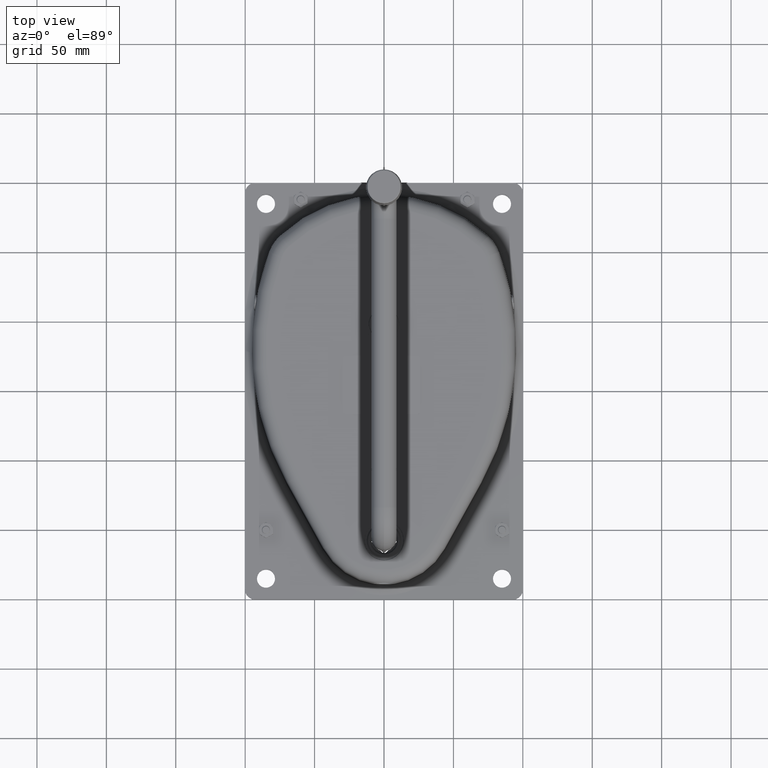
[diagram: clean part render]
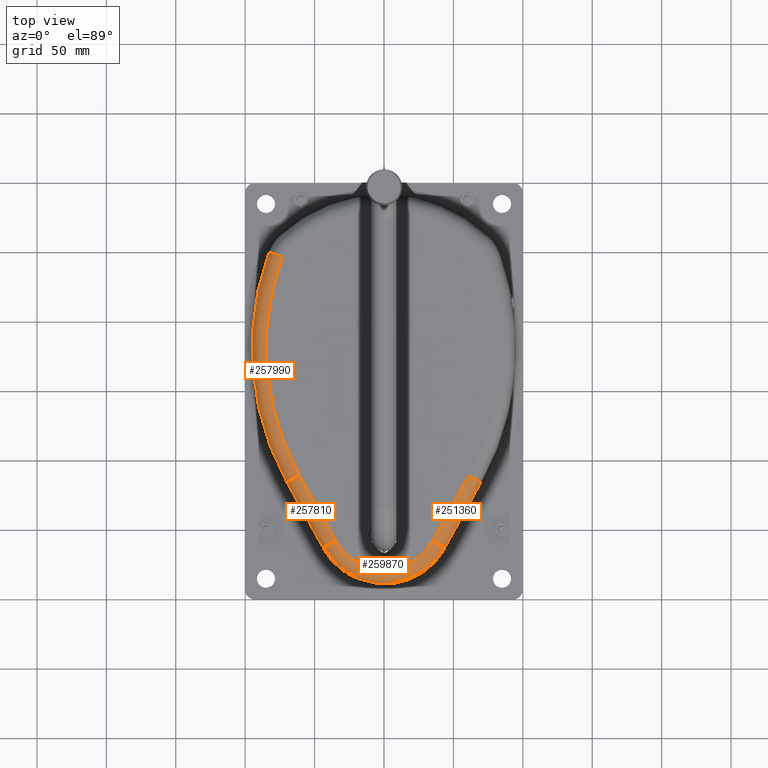
[diagram: same view with one multi-face feature highlighted, each face labeled with its STEP entity id]
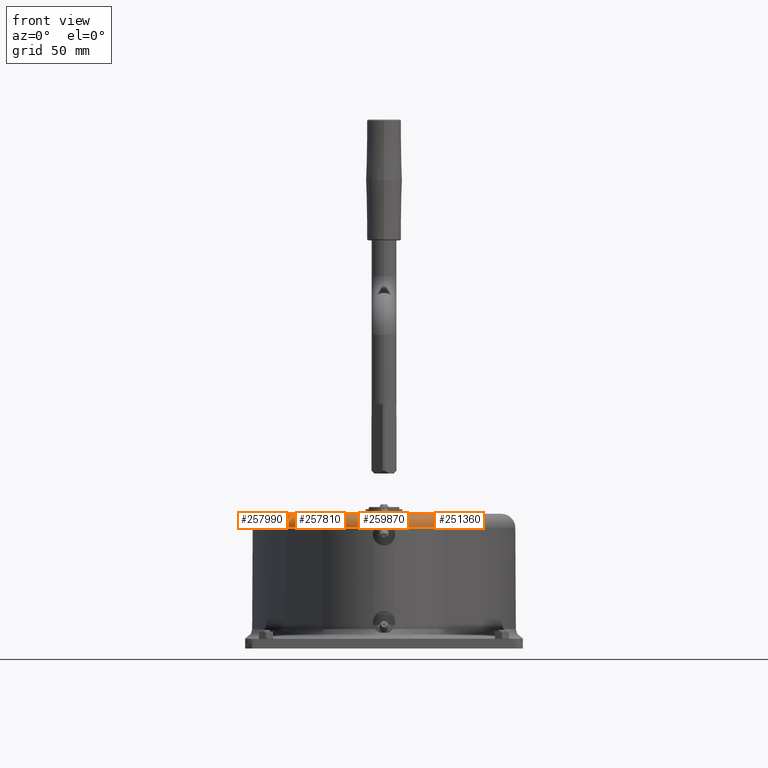
[diagram: same view with one multi-face feature highlighted, each face labeled with its STEP entity id]
A machine part, top view. The highlighted faces form ONE feature: a constant-radius fillet chain: 4 tangent blend faces with common blend radius 10 mm. The faces share edges in the B-rep.
A second angle (front view) of the same feature is appended — it is thin or edge-on in the first view.
Their STEP definitions:
[1] entity #259870 (Torus):
#53680=CARTESIAN_POINT('',(2.39097968190802,136.979134236425,-10.));
#53690=DIRECTION('',(0.,-0.,-1.));
#53700=DIRECTION('',(0.999847695156391,-0.0174524064372835,0.));
#53710=AXIS2_PLACEMENT_3D('',#53680,#53690,#53700);
#53720=CIRCLE('',#53710,40.);
#53730=CARTESIAN_POINT('',(-32.2545573199754,156.971301849046,-10.));
#53740=VERTEX_POINT('',#53730);
#53750=CARTESIAN_POINT('',(37.7131281464134,155.750011356353,-10.));
#53760=VERTEX_POINT('',#53750);
#53770=EDGE_CURVE('',#53740,#53760,#53720,.T.);
#251220=CARTESIAN_POINT('',(46.5436652625398,160.442730636335,
-2.8421709430404E-14));
#251230=VERTEX_POINT('',#251220);
#251260=CARTESIAN_POINT('',(37.7131281464135,155.750011356353,
-2.8421709430404E-14));
#251270=DIRECTION('',(0.4692719279982,-0.883053711612636,0.));
#251280=DIRECTION('',(0.883053711612636,0.4692719279982,0.));
#251290=AXIS2_PLACEMENT_3D('',#251260,#251270,#251280);
#251300=CIRCLE('',#251290,10.);
#251310=EDGE_CURVE('',#53760,#251230,#251300,.T.);
#253890=CARTESIAN_POINT('',(-40.9159415704462,161.969343752201,
-2.8421709430404E-14));
#253900=VERTEX_POINT('',#253890);
#253930=CARTESIAN_POINT('',(2.39097968190802,136.979134236425,
-2.8421709430404E-14));
#253940=DIRECTION('',(0.,-0.,-1.));
#253950=DIRECTION('',(0.999847695156391,-0.0174524064372835,0.));
#253960=AXIS2_PLACEMENT_3D('',#253930,#253940,#253950);
#253970=CIRCLE('',#253960,50.);
#253980=CARTESIAN_POINT('',(-2.9872800438964,186.689035889132,0.));
#253990=VERTEX_POINT('',#253980);
#254000=EDGE_CURVE('',#253900,#253990,#253970,.T.);
#257190=CARTESIAN_POINT('',(9.50081366601347,186.471055402596,
-7.105427357601E-14));
#257200=VERTEX_POINT('',#257190);
#257230=EDGE_CURVE('',#257200,#251230,#253970,.T.);
#257630=CARTESIAN_POINT('',(-32.2545573199754,156.971301849046,
-2.8421709430404E-14));
#257640=DIRECTION('',(0.499804190315523,0.866138425047085,0.));
#257650=DIRECTION('',(-0.866138425047085,0.499804190315523,-0.));
#257660=AXIS2_PLACEMENT_3D('',#257630,#257640,#257650);
#257670=CIRCLE('',#257660,10.);
#257680=EDGE_CURVE('',#53740,#253900,#257670,.T.);
#258300=CARTESIAN_POINT('',(2.39097968190802,136.979134236425,
-2.8421709430404E-14));
#258310=DIRECTION('',(0.,-0.,-1.));
#258320=DIRECTION('',(-1.,0.,0.));
#258330=AXIS2_PLACEMENT_3D('',#258300,#258310,#258320);
#258340=TOROIDAL_SURFACE('',#258330,40.,10.);
#258350=ORIENTED_EDGE('',*,*,#251310,.F.);
#258360=ORIENTED_EDGE('',*,*,#257230,.T.);
#258370=CARTESIAN_POINT('',(9.50081366601326,186.471055402618,
2.68595916200358E-12));
#258380=CARTESIAN_POINT('',(9.31527125875053,186.497709767241,
-0.232288110040329));
#258390=CARTESIAN_POINT('',(9.11639467594897,186.517036368844,
-0.454500245974532));
#258400=CARTESIAN_POINT('',(8.90504556973544,186.530633682329,
-0.665414668867476));
#258410=CARTESIAN_POINT('',(8.85223369043336,186.534031376748,
-0.718117929574125));
#258420=CARTESIAN_POINT('',(8.7986704925271,186.537069587956,
-0.770088186339204));
#258430=CARTESIAN_POINT('',(8.74439269806478,186.539773747498,
-0.82129034419344));
#258440=CARTESIAN_POINT('',(8.6901148918004,186.542477907627,
-0.872492513180976));
#258450=CARTESIAN_POINT('',(8.6351225965098,186.544848025036,
-0.922926486848421));
#258460=CARTESIAN_POINT('',(8.57945440851897,186.546910346571,
-0.972559791437436));
#258470=CARTESIAN_POINT('',(8.46815189299168,186.551033735222,
-1.07179621090917));
#258480=CARTESIAN_POINT('',(8.35405707465413,186.553931460233,
-1.16791849399033));
#258490=CARTESIAN_POINT('',(8.2371545426476,186.555814242713,
-1.26091695950417));
#258500=CARTESIAN_POINT('',(8.12027528994461,186.557696650265,
-1.35389690583394));
#258510=CARTESIAN_POINT('',(8.00068774760171,186.558561391436,
-1.4436671925601));
#258520=CARTESIAN_POINT('',(7.87868186168979,186.558617040583,
-1.53000392371791));
#258530=CARTESIAN_POINT('',(7.75667595460816,186.558672689739,
-1.61634066985633));
#258540=CARTESIAN_POINT('',(7.63225462580299,186.557919651364,
-1.69924181682729));
#258550=CARTESIAN_POINT('',(7.50573147707539,186.556568627291,
-1.7785187675577));
#258560=CARTESIAN_POINT('',(7.44247001456257,186.555893116448,
-1.81815717283925));
#258570=CARTESIAN_POINT('',(7.37868369421682,186.555068106401,
-1.85688993599935));
#258580=CARTESIAN_POINT('',(7.31441330033621,186.554119633326,
-1.89469711068627));
#258590=CARTESIAN_POINT('',(7.25014821918994,186.553171238654,
-1.93250116014768));
#258600=CARTESIAN_POINT('',(7.18530336906222,186.552097967863,
-1.96943616363618));
#258610=CARTESIAN_POINT('',(7.11991200869281,186.550924424903,
-2.00547845354763));
#258620=CARTESIAN_POINT('',(6.98912939788218,186.548577340957,
-2.0775629727805));
#258630=CARTESIAN_POINT('',(6.85616219208218,186.545829655434,
-2.1460731006512));
#258640=CARTESIAN_POINT('',(6.72130757807275,186.542875124311,
-2.21083341248851));
#258650=CARTESIAN_POINT('',(6.58645313296232,186.539920596889,
-2.27559364321661));
#258660=CARTESIAN_POINT('',(6.4497140368013,186.536759692943,
-2.33660264329383));
#258670=CARTESIAN_POINT('',(6.31140901736116,186.533576623467,
-2.39371682775522));
#258680=CARTESIAN_POINT('',(6.17310390484854,186.530393551848,
-2.45083105065164));
#258690=CARTESIAN_POINT('',(6.03323580875509,186.527188777341,
-2.50404927598617));
#258700=CARTESIAN_POINT('',(5.89213589528688,186.524130688413,
-2.55326429917497));
#258710=CARTESIAN_POINT('',(5.75101870514418,186.521072225045,
-2.60248534839111));
#258720=CARTESIAN_POINT('',(5.60874697836468,186.518162268904,
-2.64767970373908));
#258730=CARTESIAN_POINT('',(5.46544132722984,186.515543701851,
-2.68884058531693));
#258740=CARTESIAN_POINT('',(5.39375860993525,186.514233872125,
-2.70942961173965));
#258750=CARTESIAN_POINT('',(5.32176010488007,186.512995593662,
-2.72902532178064));
#258760=CARTESIAN_POINT('',(5.24948750712257,186.511845554314,
-2.7476144284707));
#258770=CARTESIAN_POINT('',(5.17721491812399,186.510695515106,
-2.7662035329079));
#258780=CARTESIAN_POINT('',(5.10466833863981,186.509633727489,
-2.78378600540758));
#258790=CARTESIAN_POINT('',(5.03189034139669,186.50867531306,
-2.80035083918201));
#258800=CARTESIAN_POINT('',(4.95911234305919,186.507716898616,
-2.81691567320553));
#258810=CARTESIAN_POINT('',(4.88610303290007,186.506861868309,
-2.83246284418954));
#258820=CARTESIAN_POINT('',(4.81290552185006,186.506123619003,
-2.84698372840804));
#258830=CARTESIAN_POINT('',(4.73970799933494,186.505385369581,
-2.86150461490099));
#258840=CARTESIAN_POINT('',(4.66632238478075,186.504763910227,
-2.87499919501703));
#258850=CARTESIAN_POINT('',(4.59279196472706,186.504270777409,
-2.88746128932925));
#258860=CARTESIAN_POINT('',(4.51927067824927,186.503777705845,
-2.89992183566331));
#258870=CARTESIAN_POINT('',(4.44556865001307,186.5034126524,
-2.91135653328914));
#258880=CARTESIAN_POINT('',(4.37169909917992,186.503185606531,
-2.92176193461657));
#258890=CARTESIAN_POINT('',(4.29783204530242,186.502958568338,
-2.93216698421822));
#258900=CARTESIAN_POINT('',(4.22380827242451,186.502869605572,
-2.94154099564171));
#258910=CARTESIAN_POINT('',(4.1496718841049,186.502926906827,
-2.94987788524321));
#258920=CARTESIAN_POINT('',(4.00137840796976,186.503041525336,
-2.96655399217511));
#258930=CARTESIAN_POINT('',(3.85272843597479,186.503742694648,
-2.97907267078765));
#258940=CARTESIAN_POINT('',(3.7037938183842,186.505073150665,
-2.98743114912054));
#258950=CARTESIAN_POINT('',(3.62932409368158,186.505738400255,
-2.99161052387204));
#258960=CARTESIAN_POINT('',(3.55478774621978,186.506560600406,
-2.99474882753865));
#258970=CARTESIAN_POINT('',(3.48022946519318,186.507542045456,
-2.99684391584935));
#258980=CARTESIAN_POINT('',(3.4056711786367,186.508523490579,
-2.99893900431545));
#258990=CARTESIAN_POINT('',(3.33109108517746,186.509664180051,
-2.99999087475374));
#259000=CARTESIAN_POINT('',(3.25653378490807,186.51096419526,
-2.99999994087249));
#259010=CARTESIAN_POINT('',(3.18197607122861,186.512264217678,
-3.00000900704151));
#259020=CARTESIAN_POINT('',(3.10739987643882,186.513724287311,
-2.99897526229548));
#259030=CARTESIAN_POINT('',(3.03284977888694,186.515342796526,
-2.99689819777198));
#259040=CARTESIAN_POINT('',(2.95829968623883,186.516961305635,
-2.9948211333851));
#259050=CARTESIAN_POINT('',(2.88377581144797,186.518738250643,
-2.99170075165683));
#259060=CARTESIAN_POINT('',(2.80932274981643,186.520669808409,
-2.98753910200382));
#259070=CARTESIAN_POINT('',(2.7348682924653,186.522601402386,
-2.98337737433527));
#259080=CARTESIAN_POINT('',(2.66049074384011,186.524687430063,
-2.97817484083402));
#259090=CARTESIAN_POINT('',(2.58621736615243,186.526922401042,
-2.9719346909748));
#259100=CARTESIAN_POINT('',(2.51193614943767,186.529157607906,
-2.96569388251212));
#259110=CARTESIAN_POINT('',(2.43772249601032,186.531542913879,
-2.95841200500862));
#259120=CARTESIAN_POINT('',(2.36362040010367,186.53407076675,
-2.95009212966654));
#259130=CARTESIAN_POINT('',(2.28951831150336,186.536598619373,
-2.9417722551448));
#259140=CARTESIAN_POINT('',(2.21552789676956,186.539269009977,
-2.93241439465117));
#259150=CARTESIAN_POINT('',(2.14169299952811,186.542072292217,
-2.92202413704449));
#259160=CARTESIAN_POINT('',(2.06785809859299,186.544875574598,
-2.91163387891801));
#259170=CARTESIAN_POINT('',(1.99417882909787,186.547811737351,
-2.90021124085792));
#259180=CARTESIAN_POINT('',(1.92069850167625,186.550869143052,
-2.88776428206445));
#259190=CARTESIAN_POINT('',(1.77377283013471,186.556982498852,
-2.86287629035905));
#259200=CARTESIAN_POINT('',(1.62752761387812,186.563586817243,
-2.8338747470478));
#259210=CARTESIAN_POINT('',(1.48211352629539,186.570579296601,
-2.80077888727825));
#259220=CARTESIAN_POINT('',(1.40941427459137,186.574075161584,
-2.78423273085184));
#259230=CARTESIAN_POINT('',(1.33693964913272,186.577666859314,
-2.76666674773954));
#259240=CARTESIAN_POINT('',(1.26473179215501,186.5813378784,
-2.74809107502055));
#259250=CARTESIAN_POINT('',(1.19252393324754,186.585008897585,
-2.72951540180512));
#259260=CARTESIAN_POINT('',(1.12058294511888,186.588759222447,
-2.70993006623971));
#259270=CARTESIAN_POINT('',(1.04895022818693,186.592570770057,
-2.68934753405741));
#259280=CARTESIAN_POINT('',(0.977317499817563,186.596382318276,
-2.66876499858875));
#259290=CARTESIAN_POINT('',(0.905993140960411,186.600255072455,
-2.64718529775198));
#259300=CARTESIAN_POINT('',(0.835017491485974,186.604169560582,
-2.62462310642372));
#259310=CARTESIAN_POINT('',(0.764058412318695,186.608083134814,
-2.6020661825702));
#259320=CARTESIAN_POINT('',(0.693366900808715,186.612042885185,
-2.57850183196832));
#259330=CARTESIAN_POINT('',(0.622951590177022,186.61603021265,
-2.55392760356611));
#259340=CARTESIAN_POINT('',(0.482126155369443,186.624004573893,
-2.50478095678212));
#259350=CARTESIAN_POINT('',(0.342452286275175,186.632087878338,
-2.45160758320908));
#259360=CARTESIAN_POINT('',(0.204258151794336,186.640100560999,
-2.39449999352602));
#259370=CARTESIAN_POINT('',(0.0660643095163911,186.648113226717,
-2.3373925245934));
#259380=CARTESIAN_POINT('',(-0.0706468092268165,186.656054713987,
-2.27635195368818));
#259390=CARTESIAN_POINT('',(-0.205554344089464,186.663728507466,
-2.21150952948499));
#259400=CARTESIAN_POINT('',(-0.340461862520346,186.67140230001,
-2.14666711317962));
#259410=CARTESIAN_POINT('',(-0.473562945837049,186.678807823824,
-2.07802421961867));
#259420=CARTESIAN_POINT('',(-0.60455381870717,186.68573819406,
-2.00574749634002));
#259430=CARTESIAN_POINT('',(-0.73554492742913,186.692668576774,
-1.93347064292559));
#259440=CARTESIAN_POINT('',(-0.86442314350068,186.699123261164,
-1.85756157296712));
#259450=CARTESIAN_POINT('',(-0.990910184304839,186.704891611508,
-1.77821684421418));
#259460=CARTESIAN_POINT('',(-1.05415366325124,186.707775784789,
-1.73854450584266));
#259470=CARTESIAN_POINT('',(-1.11679955295195,186.710488345223,
-1.69801382511894));
#259480=CARTESIAN_POINT('',(-1.17881587920226,186.713003093358,
-1.65665168143002));
#259490=CARTESIAN_POINT('',(-1.24081710469915,186.715517229161,
-1.615299609275));
#259500=CARTESIAN_POINT('',(-1.30226903483811,186.717836959235,
-1.57306343818082));
#259510=CARTESIAN_POINT('',(-1.36315734808783,186.719935250347,
-1.52994953894632));
#259520=CARTESIAN_POINT('',(-1.48493020241507,186.724131702577,
-1.44372441148335));
#259530=CARTESIAN_POINT('',(-1.604410685225,186.727440668605,
-1.35401078062737));
#259540=CARTESIAN_POINT('',(-1.72129943534889,186.729639523221,
-1.26102295054939));
#259550=CARTESIAN_POINT('',(-1.77974361247661,186.730738946806,
-1.21452919297186));
#259560=CARTESIAN_POINT('',(-1.83753987210677,186.731560897666,
-1.16721775097035));
#259570=CARTESIAN_POINT('',(-1.89465306232068,186.73207818375,
-1.11911892272792));
#259580=CARTESIAN_POINT('',(-1.95176626224366,186.732595469922,
-1.07102008630884));
#259590=CARTESIAN_POINT('',(-2.00819630016601,186.732808079062,
-1.02213394509384));
#259600=CARTESIAN_POINT('',(-2.06391006561612,186.732689489855,
-0.972492689421361));
#259610=CARTESIAN_POINT('',(-2.11963055788907,186.732570886329,
-0.922845440114631));
#259620=CARTESIAN_POINT('',(-2.17460607258475,186.732121401593,
-0.872469718792934));
#259630=CARTESIAN_POINT('',(-2.22888753002727,186.731314168777,
-0.821322476843958));
#259640=CARTESIAN_POINT('',(-2.28317423865299,186.73050685787,
-0.770170286915498));
#259650=CARTESIAN_POINT('',(-2.33677523387174,186.729341236896,
-0.718236941194088));
#259660=CARTESIAN_POINT('',(-2.38965306534411,186.727790051581,
-0.66555669586335));
#259670=CARTESIAN_POINT('',(-2.44253088288537,186.726238866675,
-0.612876464411667));
#259680=CARTESIAN_POINT('',(-2.49468542597574,186.724302105838,
-0.559449437972141));
#259690=CARTESIAN_POINT('',(-2.54608118474061,186.721953548652,
-0.505312586065819));
#259700=CARTESIAN_POINT('',(-2.59747693999993,186.719604991625,
-0.451175737852001));
#259710=CARTESIAN_POINT('',(-2.64811380161896,186.716844629763,
-0.396329178064453));
#259720=CARTESIAN_POINT('',(-2.69795859142559,186.713647477351,
-0.3408122491666));
#259730=CARTESIAN_POINT('',(-2.74780338792646,186.71045032451,
-0.285295312812729));
#259740=CARTESIAN_POINT('',(-2.79685600591469,186.706816376347,
-0.229108129864677));
#259750=CARTESIAN_POINT('',(-2.84508595411315,186.702722051011,
-0.172292012430058));
#259760=CARTESIAN_POINT('',(-2.89331591907519,186.698627724251,
-0.115475875247528));
#259770=CARTESIAN_POINT('',(-2.94072311155416,186.694073019882,
-0.0580309337724281));
#259780=CARTESIAN_POINT('',(-2.98728004389638,186.689035889132,
-2.92022670197013E-14));
#259790=B_SPLINE_CURVE_WITH_KNOTS('',3,(#258370,#258380,#258390,#258400,
#258410,#258420,#258430,#258440,#258450,#258460,#258470,#258480,#258490,
#258500,#258510,#258520,#258530,#258540,#258550,#258560,#258570,#258580,
#258590,#258600,#258610,#258620,#258630,#258640,#258650,#258660,#258670,
#258680,#258690,#258700,#258710,#258720,#258730,#258740,#258750,#258760,
#258770,#258780,#258790,#258800,#258810,#258820,#258830,#258840,#258850,
#258860,#258870,#258880,#258890,#258900,#258910,#258920,#258930,#258940,
#258950,#258960,#258970,#258980,#258990,#259000,#259010,#259020,#259030,
#259040,#259050,#259060,#259070,#259080,#259090,#259100,#259110,#259120,
#259130,#259140,#259150,#259160,#259170,#259180,#259190,#259200,#259210,
#259220,#259230,#259240,#259250,#259260,#259270,#259280,#259290,#259300,
#259310,#259320,#259330,#259340,#259350,#259360,#259370,#259380,#259390,
#259400,#259410,#259420,#259430,#259440,#259450,#259460,#259470,#259480,
#259490,#259500,#259510,#259520,#259530,#259540,#259550,#259560,#259570,
#259580,#259590,#259600,#259610,#259620,#259630,#259640,#259650,#259660,
#259670,#259680,#259690,#259700,#259710,#259720,#259730,#259740,#259750,
#259760,#259770,#259780),.UNSPECIFIED.,.F.,.F.,(4,3,3,3,3,3,3,3,3,3,3,3,
3,3,3,3,3,3,3,3,3,3,3,3,3,3,3,3,3,3,3,3,3,3,3,3,3,3,3,3,3,3,3,3,3,3,3,4)
,(0.,0.89567604570415,1.1197157176852,1.3436389611871,1.79136068724672,
2.23966152707411,2.68789136626241,2.91174260940627,3.13561037442671,
3.58413445685134,4.03313609635224,4.48189798432399,4.92975429814511,
5.15360105888409,5.37752738291209,5.60144431046224,5.82526376855807,
6.04901156884601,6.27281948014755,6.72034086983031,6.94412437018759,
7.16787594801154,7.39163176887157,7.61542551875891,7.83917077083229,
8.06295847284421,8.28680425320833,8.51061892082181,8.95823988913308,
9.18218154354323,9.406105522488,9.62992301240821,9.85378399966425,
10.3025081713004,10.7520002608768,11.201529354622,11.6503744495908,
11.874329348942,12.0981298136,12.5461662373609,12.7702146590457,
12.9941591031703,13.2179346198308,13.4418198753792,13.6658415516366,
13.8898948297087,14.113878580576,14.3376974297084),.UNSPECIFIED.);
#259800=EDGE_CURVE('',#257200,#253990,#259790,.T.);
#259810=ORIENTED_EDGE('',*,*,#259800,.F.);
#259820=ORIENTED_EDGE('',*,*,#254000,.T.);
#259830=ORIENTED_EDGE('',*,*,#257680,.T.);
#259840=ORIENTED_EDGE('',*,*,#53770,.F.);
#259850=EDGE_LOOP('',(#259840,#259830,#259820,#259810,#258360,#258350));
#259860=FACE_OUTER_BOUND('',#259850,.T.);
#259870=ADVANCED_FACE('',(#259860),#258340,.T.);
[2] entity #257810 (Cylinder):
#17770=CARTESIAN_POINT('',(-67.946986108562,115.125746204848,
-2.8421709430404E-14));
#17780=VERTEX_POINT('',#17770);
#53730=CARTESIAN_POINT('',(-32.2545573199754,156.971301849046,-10.));
#53740=VERTEX_POINT('',#53730);
#53790=CARTESIAN_POINT('',(-9.04759503807331,197.187934983483,-10.));
#53800=DIRECTION('',(-0.499804190315523,-0.866138425047085,0.));
#53810=VECTOR('',#53800,1.);
#53820=LINE('',#53790,#53810);
#53830=CARTESIAN_POINT('',(-59.2856018580911,110.127704301693,-10.));
#53840=VERTEX_POINT('',#53830);
#53850=EDGE_CURVE('',#53740,#53840,#53820,.T.);
#253890=CARTESIAN_POINT('',(-40.9159415704462,161.969343752201,
-2.8421709430404E-14));
#253900=VERTEX_POINT('',#253890);
#257420=CARTESIAN_POINT('',(-17.7089792885442,202.185976886639,
-2.8421709430404E-14));
#257430=DIRECTION('',(-0.499804190315523,-0.866138425047085,0.));
#257440=VECTOR('',#257430,1.);
#257450=LINE('',#257420,#257440);
#257460=EDGE_CURVE('',#253900,#17780,#257450,.T.);
#257580=CARTESIAN_POINT('',(-9.04759503807331,197.187934983483,
-2.8421709430404E-14));
#257590=DIRECTION('',(-0.499804190315523,-0.866138425047085,0.));
#257600=DIRECTION('',(0.866138425047085,-0.499804190315523,0.));
#257610=AXIS2_PLACEMENT_3D('',#257580,#257590,#257600);
#257620=CYLINDRICAL_SURFACE('',#257610,10.);
#257630=CARTESIAN_POINT('',(-32.2545573199754,156.971301849046,
-2.8421709430404E-14));
#257640=DIRECTION('',(0.499804190315523,0.866138425047085,0.));
#257650=DIRECTION('',(-0.866138425047085,0.499804190315523,-0.));
#257660=AXIS2_PLACEMENT_3D('',#257630,#257640,#257650);
#257670=CIRCLE('',#257660,10.);
#257680=EDGE_CURVE('',#53740,#253900,#257670,.T.);
#257690=ORIENTED_EDGE('',*,*,#257680,.F.);
#257700=ORIENTED_EDGE('',*,*,#257460,.F.);
#257710=CARTESIAN_POINT('',(-59.2856018580911,110.127704301693,
-2.8421709430404E-14));
#257720=DIRECTION('',(0.499804190315522,0.866138425047085,0.));
#257730=DIRECTION('',(-0.866138425047085,0.499804190315522,0.));
#257740=AXIS2_PLACEMENT_3D('',#257710,#257720,#257730);
#257750=CIRCLE('',#257740,10.);
#257760=EDGE_CURVE('',#53840,#17780,#257750,.T.);
#257770=ORIENTED_EDGE('',*,*,#257760,.T.);
#257780=ORIENTED_EDGE('',*,*,#53850,.T.);
#257790=EDGE_LOOP('',(#257780,#257770,#257700,#257690));
#257800=FACE_OUTER_BOUND('',#257790,.T.);
#257810=ADVANCED_FACE('',(#257800),#257620,.T.);
[3] entity #257990 (Torus):
#17680=CARTESIAN_POINT('',(-83.705537333103,-50.2889115643866,
-2.8421709430404E-14));
#17690=VERTEX_POINT('',#17680);
#17720=CARTESIAN_POINT('',(105.280698900855,15.1649081417436,
-2.8421709430404E-14));
#17730=DIRECTION('',(0.,-0.,-1.));
#17740=DIRECTION('',(0.999847695156391,-0.0174524064372835,0.));
#17750=AXIS2_PLACEMENT_3D('',#17720,#17730,#17740);
#17760=CIRCLE('',#17750,200.);
#17770=CARTESIAN_POINT('',(-67.946986108562,115.125746204848,
-2.8421709430404E-14));
#17780=VERTEX_POINT('',#17770);
#17790=EDGE_CURVE('',#17690,#17780,#17760,.T.);
#53830=CARTESIAN_POINT('',(-59.2856018580911,110.127704301693,-10.));
#53840=VERTEX_POINT('',#53830);
#53870=CARTESIAN_POINT('',(105.280698900855,15.1649081417436,-10.));
#53880=DIRECTION('',(0.,-0.,-1.));
#53890=DIRECTION('',(0.999847695156391,-0.0174524064372835,0.));
#53900=AXIS2_PLACEMENT_3D('',#53870,#53880,#53890);
#53910=CIRCLE('',#53900,190.);
#53920=CARTESIAN_POINT('',(-74.2562255214051,-47.0162205790802,-10.));
#53930=VERTEX_POINT('',#53920);
#53940=EDGE_CURVE('',#53930,#53840,#53910,.T.);
#257710=CARTESIAN_POINT('',(-59.2856018580911,110.127704301693,
-2.8421709430404E-14));
#257720=DIRECTION('',(0.499804190315522,0.866138425047085,0.));
#257730=DIRECTION('',(-0.866138425047085,0.499804190315522,0.));
#257740=AXIS2_PLACEMENT_3D('',#257710,#257720,#257730);
#257750=CIRCLE('',#257740,10.);
#257760=EDGE_CURVE('',#53840,#17780,#257750,.T.);
#257820=CARTESIAN_POINT('',(105.280698900855,15.1649081417436,
-2.8421709430404E-14));
#257830=DIRECTION('',(0.,-0.,-1.));
#257840=DIRECTION('',(-1.,0.,0.));
#257850=AXIS2_PLACEMENT_3D('',#257820,#257830,#257840);
#257860=TOROIDAL_SURFACE('',#257850,190.,10.);
#257870=ORIENTED_EDGE('',*,*,#257760,.F.);
#257880=ORIENTED_EDGE('',*,*,#17790,.T.);
#257890=CARTESIAN_POINT('',(-74.2562255214051,-47.0162205790801,
-2.8421709430404E-14));
#257900=DIRECTION('',(-0.327269098530651,0.94493118116979,-0.));
#257910=DIRECTION('',(-0.94493118116979,-0.327269098530651,0.));
#257920=AXIS2_PLACEMENT_3D('',#257890,#257900,#257910);
#257930=CIRCLE('',#257920,10.);
#257940=EDGE_CURVE('',#53930,#17690,#257930,.T.);
#257950=ORIENTED_EDGE('',*,*,#257940,.T.);
#257960=ORIENTED_EDGE('',*,*,#53940,.F.);
#257970=EDGE_LOOP('',(#257960,#257950,#257880,#257870));
#257980=FACE_OUTER_BOUND('',#257970,.T.);
#257990=ADVANCED_FACE('',(#257980),#257860,.T.);
[4] entity #251360 (Cylinder):
#53750=CARTESIAN_POINT('',(37.7131281464134,155.750011356353,-10.));
#53760=VERTEX_POINT('',#53750);
#54180=CARTESIAN_POINT('',(63.0928881244137,107.991579813231,-10.));
#54190=VERTEX_POINT('',#54180);
#54220=CARTESIAN_POINT('',(15.9238431743633,196.752056908134,-10.));
#54230=DIRECTION('',(-0.4692719279982,0.883053711612636,-0.));
#54240=VECTOR('',#54230,1.);
#54250=LINE('',#54220,#54240);
#54260=EDGE_CURVE('',#54190,#53760,#54250,.T.);
#73020=CARTESIAN_POINT('',(71.92342524054,112.684299093213,
-2.8421709430404E-14));
#73030=VERTEX_POINT('',#73020);
#251010=CARTESIAN_POINT('',(63.0928881244137,107.991579813231,
-2.8421709430404E-14));
#251020=DIRECTION('',(0.4692719279982,-0.883053711612636,0.));
#251030=DIRECTION('',(0.883053711612636,0.4692719279982,0.));
#251040=AXIS2_PLACEMENT_3D('',#251010,#251020,#251030);
#251050=CIRCLE('',#251040,10.);
#251060=EDGE_CURVE('',#54190,#73030,#251050,.T.);
#251120=CARTESIAN_POINT('',(15.9238431743633,196.752056908134,
-2.8421709430404E-14));
#251130=DIRECTION('',(-0.4692719279982,0.883053711612636,-0.));
#251140=DIRECTION('',(-0.883053711612636,-0.4692719279982,0.));
#251150=AXIS2_PLACEMENT_3D('',#251120,#251130,#251140);
#251160=CYLINDRICAL_SURFACE('',#251150,10.);
#251170=ORIENTED_EDGE('',*,*,#251060,.F.);
#251180=CARTESIAN_POINT('',(24.7543802904897,201.444776188116,
-2.8421709430404E-14));
#251190=DIRECTION('',(-0.4692719279982,0.883053711612636,-0.));
#251200=VECTOR('',#251190,1.);
#251210=LINE('',#251180,#251200);
#251220=CARTESIAN_POINT('',(46.5436652625398,160.442730636335,
-2.8421709430404E-14));
#251230=VERTEX_POINT('',#251220);
#251240=EDGE_CURVE('',#73030,#251230,#251210,.T.);
#251250=ORIENTED_EDGE('',*,*,#251240,.F.);
#251260=CARTESIAN_POINT('',(37.7131281464135,155.750011356353,
-2.8421709430404E-14));
#251270=DIRECTION('',(0.4692719279982,-0.883053711612636,0.));
#251280=DIRECTION('',(0.883053711612636,0.4692719279982,0.));
#251290=AXIS2_PLACEMENT_3D('',#251260,#251270,#251280);
#251300=CIRCLE('',#251290,10.);
#251310=EDGE_CURVE('',#53760,#251230,#251300,.T.);
#251320=ORIENTED_EDGE('',*,*,#251310,.T.);
#251330=ORIENTED_EDGE('',*,*,#54260,.T.);
#251340=EDGE_LOOP('',(#251330,#251320,#251250,#251170));
#251350=FACE_OUTER_BOUND('',#251340,.T.);
#251360=ADVANCED_FACE('',(#251350),#251160,.T.);